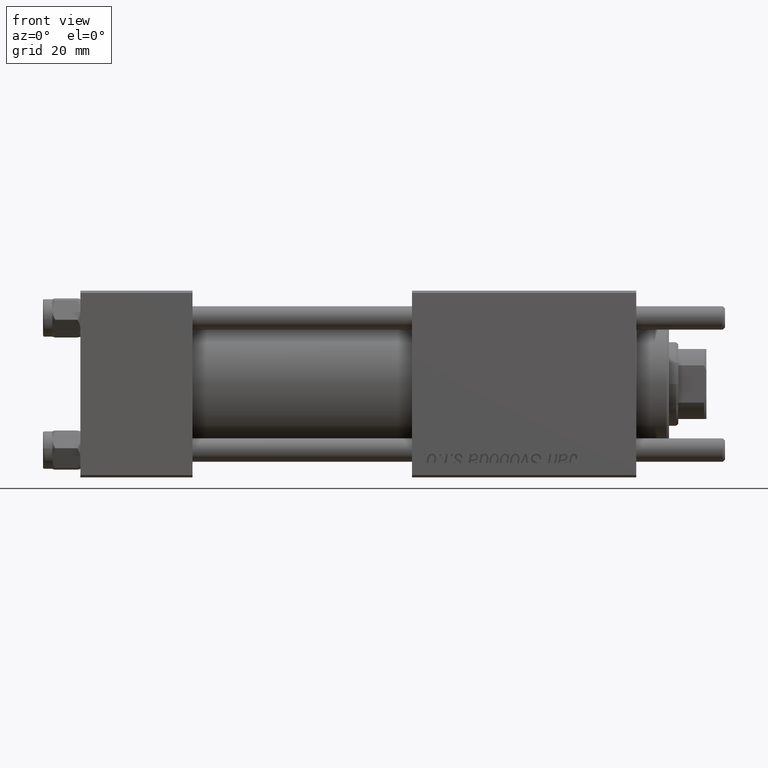
[diagram: clean part render]
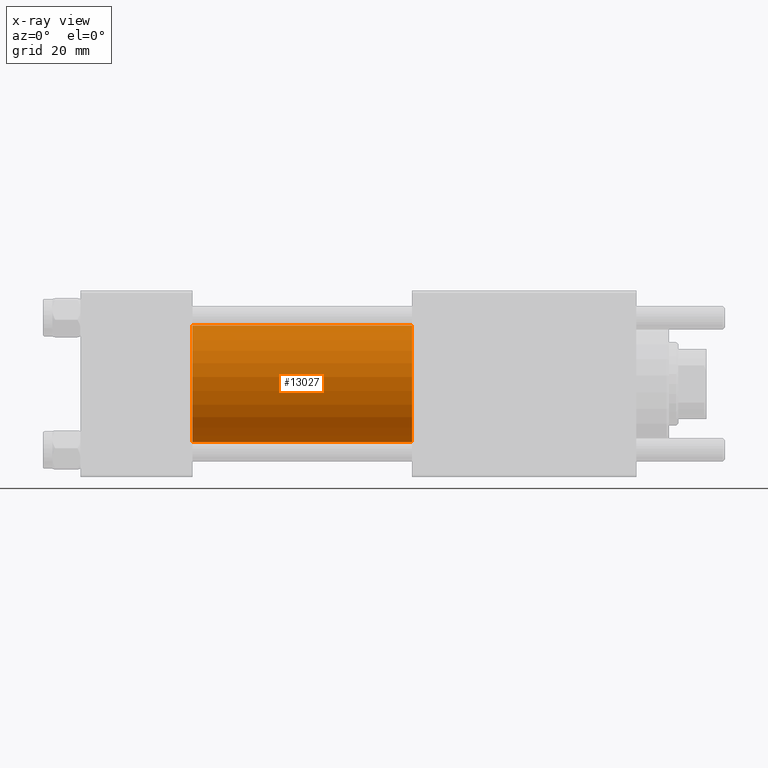
[diagram: x-ray — body ghosted, one internal face saturated and labeled with its STEP entity id]
A machine part, front view, then the same camera in x-ray: the body is ghosted and one INTERNAL B-rep face — a face not visible from any outside direction — is saturated and labeled: STEP entity #13027.
In plain terms, the highlighted cylindrical surface (partial cylindrical patch) has radius 12.5 mm, axis along (-1, -0, -0).
Its self-contained STEP definition (entity closure, byte-faithful):
#340 = VERTEX_POINT ( 'NONE', #7593 ) ;
#4357 = AXIS2_PLACEMENT_3D ( 'NONE', #19912, #33081, #55144 ) ;
#5638 = DIRECTION ( 'NONE',  ( 0.000000000000000000, 0.000000000000000000, -1.000000000000000000 ) ) ;
#7139 = CARTESIAN_POINT ( 'NONE',  ( 71.00000000000001421, -1.071276715031019515E-15, -12.49999999999999645 ) ) ;
#7593 = CARTESIAN_POINT ( 'NONE',  ( 24.00000000000000000, -1.071276715031019515E-15, -12.49999999999999645 ) ) ;
#9774 = LINE ( 'NONE', #27276, #17648 ) ;
#10513 = CARTESIAN_POINT ( 'NONE',  ( 71.00000000000001421, -2.602085213965210642E-15, 0.000000000000000000 ) ) ;
#12766 = VERTEX_POINT ( 'NONE', #33733 ) ;
#13027 = ADVANCED_FACE ( 'NONE', ( #20189 ), #29367, .F. ) ;
#16119 = LINE ( 'NONE', #33883, #44148 ) ;
#17648 = VECTOR ( 'NONE', #46719, 1000.000000000000000 ) ;
#17931 = DIRECTION ( 'NONE',  ( 0.000000000000000000, 0.000000000000000000, -1.000000000000000000 ) ) ;
#18830 = CIRCLE ( 'NONE', #52637, 12.49999999999999645 ) ;
#19912 = CARTESIAN_POINT ( 'NONE',  ( 71.00000000000001421, -2.602085213965210642E-15, 0.000000000000000000 ) ) ;
#20189 = FACE_OUTER_BOUND ( 'NONE', #48269, .T. ) ;
#21163 = CIRCLE ( 'NONE', #55925, 12.49999999999999645 ) ;
#23308 = VERTEX_POINT ( 'NONE', #28589 ) ;
#23551 = EDGE_CURVE ( 'NONE', #12766, #340, #21163, .T. ) ;
#24066 = ORIENTED_EDGE ( 'NONE', *, *, #27880, .F. ) ;
#27276 = CARTESIAN_POINT ( 'NONE',  ( 71.00000000000001421, -1.071276715031019515E-15, -12.49999999999999645 ) ) ;
#27880 = EDGE_CURVE ( 'NONE', #23308, #12766, #16119, .T. ) ;
#28095 = ORIENTED_EDGE ( 'NONE', *, *, #28981, .T. ) ;
#28589 = CARTESIAN_POINT ( 'NONE',  ( 71.00000000000001421, -2.602085213965210642E-15, 12.49999999999999645 ) ) ;
#28981 = EDGE_CURVE ( 'NONE', #32174, #340, #9774, .T. ) ;
#29367 = CYLINDRICAL_SURFACE ( 'NONE', #4357, 12.49999999999999645 ) ;
#31392 = CARTESIAN_POINT ( 'NONE',  ( 24.00000000000000000, -2.602085213965210642E-15, 0.000000000000000000 ) ) ;
#31675 = DIRECTION ( 'NONE',  ( 1.000000000000000000, 0.000000000000000000, 0.000000000000000000 ) ) ;
#32174 = VERTEX_POINT ( 'NONE', #7139 ) ;
#33081 = DIRECTION ( 'NONE',  ( -1.000000000000000000, -0.000000000000000000, -0.000000000000000000 ) ) ;
#33733 = CARTESIAN_POINT ( 'NONE',  ( 24.00000000000000000, -2.602085213965210642E-15, 12.49999999999999645 ) ) ;
#33883 = CARTESIAN_POINT ( 'NONE',  ( 71.00000000000001421, -2.602085213965210642E-15, 12.49999999999999645 ) ) ;
#37322 = DIRECTION ( 'NONE',  ( -1.000000000000000000, -0.000000000000000000, -0.000000000000000000 ) ) ;
#41529 = ORIENTED_EDGE ( 'NONE', *, *, #56356, .T. ) ;
#41746 = DIRECTION ( 'NONE',  ( 1.000000000000000000, 0.000000000000000000, 0.000000000000000000 ) ) ;
#44148 = VECTOR ( 'NONE', #37322, 1000.000000000000000 ) ;
#46719 = DIRECTION ( 'NONE',  ( -1.000000000000000000, -0.000000000000000000, -0.000000000000000000 ) ) ;
#48269 = EDGE_LOOP ( 'NONE', ( #41529, #28095, #55858, #24066 ) ) ;
#52637 = AXIS2_PLACEMENT_3D ( 'NONE', #10513, #41746, #5638 ) ;
#55144 = DIRECTION ( 'NONE',  ( 0.000000000000000000, 0.000000000000000000, 1.000000000000000000 ) ) ;
#55858 = ORIENTED_EDGE ( 'NONE', *, *, #23551, .F. ) ;
#55925 = AXIS2_PLACEMENT_3D ( 'NONE', #31392, #31675, #17931 ) ;
#56356 = EDGE_CURVE ( 'NONE', #23308, #32174, #18830, .T. ) ;